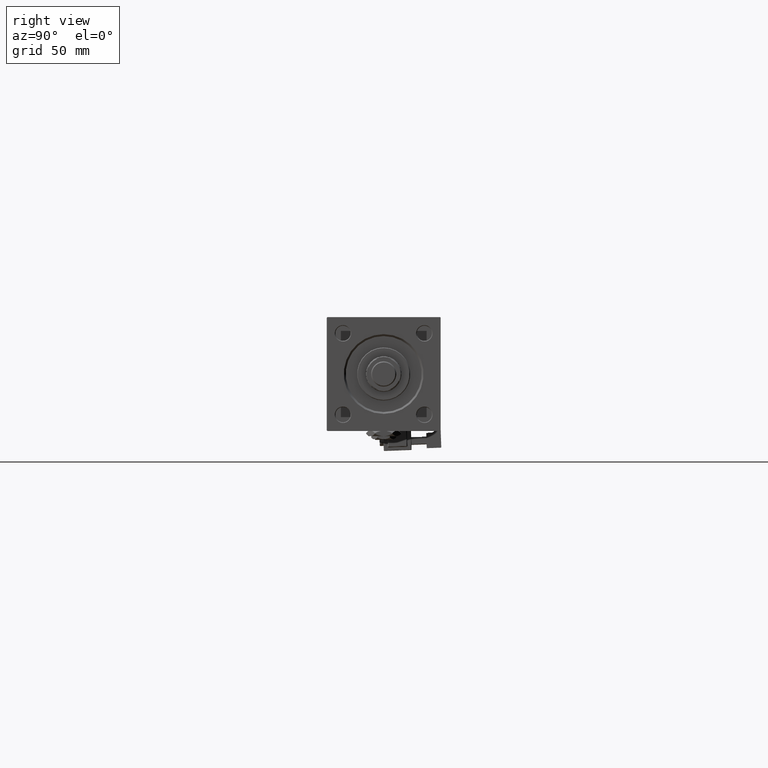
[diagram: clean part render]
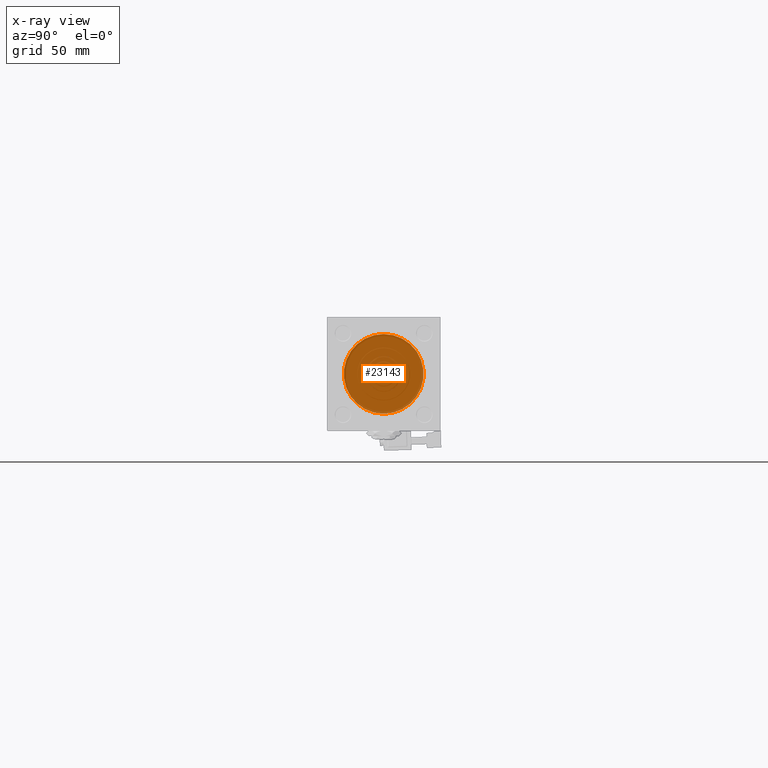
[diagram: x-ray — body ghosted, one internal face saturated and labeled with its STEP entity id]
A machine part, right view, then the same camera in x-ray: the body is ghosted and one INTERNAL B-rep face — a face not visible from any outside direction — is saturated and labeled: STEP entity #23143.
In plain terms, the highlighted planar face has unit normal (-1, 0, 0).
Its self-contained STEP definition (entity closure, byte-faithful):
#168 = DIRECTION ( 'NONE',  ( 0.000000000000000000, 0.000000000000000000, -1.000000000000000000 ) ) ;
#679 = AXIS2_PLACEMENT_3D ( 'NONE', #21266, #21535, #168 ) ;
#1657 = CARTESIAN_POINT ( 'NONE',  ( 37.00000000000000000, -2.602085213965210642E-15, 0.000000000000000000 ) ) ;
#2120 = EDGE_LOOP ( 'NONE', ( #20880, #28050 ) ) ;
#4421 = CIRCLE ( 'NONE', #38106, 3.500000000000000000 ) ;
#4521 = DIRECTION ( 'NONE',  ( 0.000000000000000000, 0.000000000000000000, -1.000000000000000000 ) ) ;
#8865 = EDGE_CURVE ( 'NONE', #48660, #31351, #47498, .T. ) ;
#9164 = ORIENTED_EDGE ( 'NONE', *, *, #47568, .T. ) ;
#10533 = DIRECTION ( 'NONE',  ( 1.000000000000000000, 0.000000000000000000, 0.000000000000000000 ) ) ;
#12873 = EDGE_LOOP ( 'NONE', ( #9164, #43286 ) ) ;
#18477 = CARTESIAN_POINT ( 'NONE',  ( 37.00000000000000000, 1.255552203348951850E-15, -31.50000000000000000 ) ) ;
#18669 = DIRECTION ( 'NONE',  ( 0.000000000000000000, 0.000000000000000000, 1.000000000000000000 ) ) ;
#19325 = CIRCLE ( 'NONE', #679, 31.50000000000000000 ) ;
#19513 = CIRCLE ( 'NONE', #49692, 3.500000000000000000 ) ;
#19596 = AXIS2_PLACEMENT_3D ( 'NONE', #26227, #42630, #37917 ) ;
#20880 = ORIENTED_EDGE ( 'NONE', *, *, #43993, .T. ) ;
#20972 = FACE_BOUND ( 'NONE', #12873, .T. ) ;
#21266 = CARTESIAN_POINT ( 'NONE',  ( 37.00000000000000000, -2.602085213965210642E-15, 0.000000000000000000 ) ) ;
#21535 = DIRECTION ( 'NONE',  ( 1.000000000000000000, 0.000000000000000000, 0.000000000000000000 ) ) ;
#23143 = ADVANCED_FACE ( 'NONE', ( #20972, #25683 ), #30389, .F. ) ;
#23792 = VERTEX_POINT ( 'NONE', #37101 ) ;
#24402 = DIRECTION ( 'NONE',  ( -1.000000000000000000, 0.000000000000000000, -0.000000000000000000 ) ) ;
#24686 = DIRECTION ( 'NONE',  ( -1.000000000000000000, 0.000000000000000000, -0.000000000000000000 ) ) ;
#25683 = FACE_OUTER_BOUND ( 'NONE', #2120, .T. ) ;
#26227 = CARTESIAN_POINT ( 'NONE',  ( 37.00000000000000000, 0.000000000000000000, 0.000000000000000000 ) ) ;
#27089 = AXIS2_PLACEMENT_3D ( 'NONE', #1657, #10533, #4521 ) ;
#28050 = ORIENTED_EDGE ( 'NONE', *, *, #8865, .T. ) ;
#28848 = CARTESIAN_POINT ( 'NONE',  ( 37.00000000000000711, 0.000000000000000000, 0.000000000000000000 ) ) ;
#29725 = VERTEX_POINT ( 'NONE', #32981 ) ;
#30389 = PLANE ( 'NONE',  #19596 ) ;
#31351 = VERTEX_POINT ( 'NONE', #52053 ) ;
#32981 = CARTESIAN_POINT ( 'NONE',  ( 37.00000000000000711, 0.000000000000000000, 3.500000000000000000 ) ) ;
#33560 = DIRECTION ( 'NONE',  ( 0.000000000000000000, 0.000000000000000000, 1.000000000000000000 ) ) ;
#37101 = CARTESIAN_POINT ( 'NONE',  ( 37.00000000000000711, 4.286263797015736595E-16, -3.500000000000000000 ) ) ;
#37917 = DIRECTION ( 'NONE',  ( -0.000000000000000000, 0.000000000000000000, 1.000000000000000000 ) ) ;
#38106 = AXIS2_PLACEMENT_3D ( 'NONE', #28848, #24686, #33560 ) ;
#42630 = DIRECTION ( 'NONE',  ( -1.000000000000000000, 0.000000000000000000, -0.000000000000000000 ) ) ;
#43286 = ORIENTED_EDGE ( 'NONE', *, *, #54543, .T. ) ;
#43993 = EDGE_CURVE ( 'NONE', #31351, #48660, #19325, .T. ) ;
#44490 = CARTESIAN_POINT ( 'NONE',  ( 37.00000000000000711, 0.000000000000000000, 0.000000000000000000 ) ) ;
#47498 = CIRCLE ( 'NONE', #27089, 31.50000000000000000 ) ;
#47568 = EDGE_CURVE ( 'NONE', #29725, #23792, #4421, .T. ) ;
#48660 = VERTEX_POINT ( 'NONE', #18477 ) ;
#49692 = AXIS2_PLACEMENT_3D ( 'NONE', #44490, #24402, #18669 ) ;
#52053 = CARTESIAN_POINT ( 'NONE',  ( 37.00000000000000000, -2.602085213965210642E-15, 31.50000000000000000 ) ) ;
#54543 = EDGE_CURVE ( 'NONE', #23792, #29725, #19513, .T. ) ;